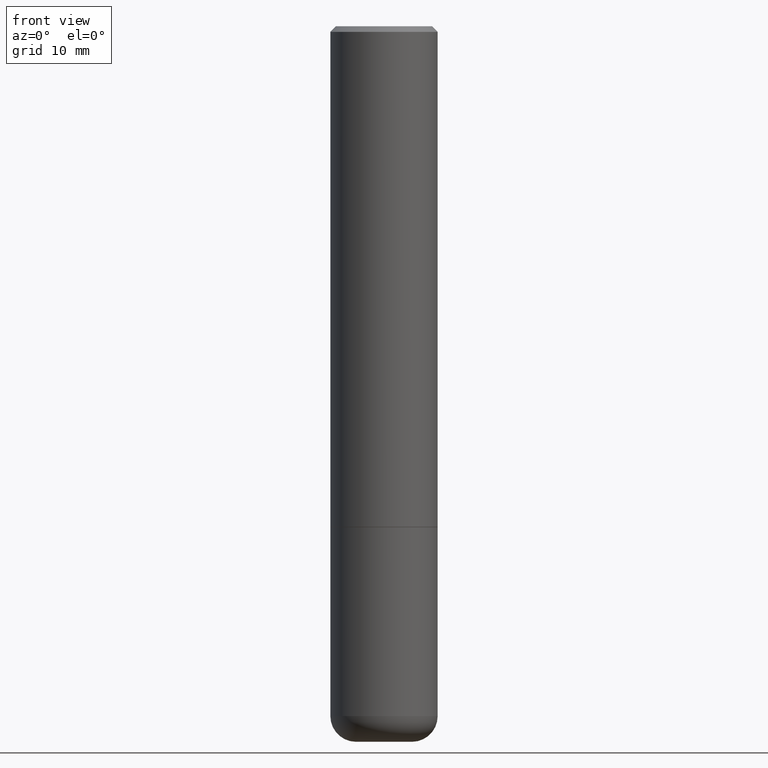
[diagram: clean part render]
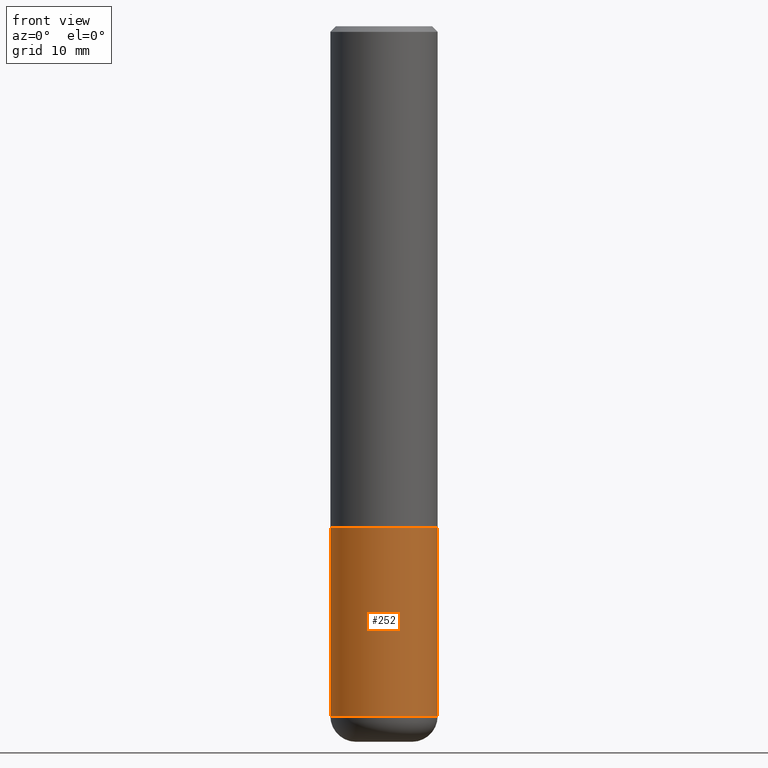
[diagram: same view with one face highlighted and labeled with its STEP entity id]
A machine part, front view. The second image highlights one B-rep face of the part: STEP entity #252.
In plain terms, the highlighted cylindrical surface (partial cylindrical patch) has radius 4.7625 mm, axis along (-0, 0, 1).
Its self-contained STEP definition (entity closure, byte-faithful):
#3 = VERTEX_POINT ( 'NONE', #364 ) ;
#42 = CARTESIAN_POINT ( 'NONE',  ( 0.000000000000000000, 0.000000000000000000, 0.000000000000000000 ) ) ;
#49 = AXIS2_PLACEMENT_3D ( 'NONE', #388, #291, #258 ) ;
#55 = CARTESIAN_POINT ( 'NONE',  ( -0.1874999999999999722, -7.082202397061793830E-15, -2.410000000000000142 ) ) ;
#66 = LINE ( 'NONE', #267, #70 ) ;
#70 = VECTOR ( 'NONE', #363, 39.37007874015748143 ) ;
#71 = CARTESIAN_POINT ( 'NONE',  ( -0.1875000000000000278, -5.930013555243555721E-15, -1.750000000000000222 ) ) ;
#75 = ORIENTED_EDGE ( 'NONE', *, *, #93, .F. ) ;
#82 = CARTESIAN_POINT ( 'NONE',  ( 4.279570410823989044E-29, -6.110092342975505460E-15, -1.750000000000000222 ) ) ;
#84 = CARTESIAN_POINT ( 'NONE',  ( -0.1875000000000000278, 1.332267629550188046E-15, -9.223003294227947991E-30 ) ) ;
#93 = EDGE_CURVE ( 'NONE', #343, #234, #99, .T. ) ;
#94 = CARTESIAN_POINT ( 'NONE',  ( 0.1875000000000000278, -7.419397845041680468E-15, -1.750000000000000222 ) ) ;
#95 = DIRECTION ( 'NONE',  ( -2.445468806185136597E-29, 3.491481338843145583E-15, 1.000000000000000000 ) ) ;
#99 = CIRCLE ( 'NONE', #109, 0.1875000000000000278 ) ;
#106 = EDGE_CURVE ( 'NONE', #161, #343, #341, .T. ) ;
#109 = AXIS2_PLACEMENT_3D ( 'NONE', #82, #116, #411 ) ;
#116 = DIRECTION ( 'NONE',  ( -2.445468806185136597E-29, 3.491481338843145583E-15, 1.000000000000000000 ) ) ;
#161 = VERTEX_POINT ( 'NONE', #55 ) ;
#183 = CIRCLE ( 'NONE', #49, 0.1875000000000000278 ) ;
#185 = AXIS2_PLACEMENT_3D ( 'NONE', #42, #95, #398 ) ;
#188 = EDGE_CURVE ( 'NONE', #161, #3, #183, .T. ) ;
#234 = VERTEX_POINT ( 'NONE', #94 ) ;
#252 = ADVANCED_FACE ( 'NONE', ( #298 ), #390, .T. ) ;
#258 = DIRECTION ( 'NONE',  ( 1.000000000000000000, -6.982962677686261189E-15, 0.000000000000000000 ) ) ;
#267 = CARTESIAN_POINT ( 'NONE',  ( 0.1875000000000000278, -1.309305502066175008E-15, 9.142831454617381013E-30 ) ) ;
#274 = EDGE_CURVE ( 'NONE', #3, #234, #66, .T. ) ;
#291 = DIRECTION ( 'NONE',  ( -2.445468806185136597E-29, 3.491481338843145583E-15, 1.000000000000000000 ) ) ;
#298 = FACE_OUTER_BOUND ( 'NONE', #381, .T. ) ;
#336 = ORIENTED_EDGE ( 'NONE', *, *, #274, .T. ) ;
#341 = LINE ( 'NONE', #84, #355 ) ;
#343 = VERTEX_POINT ( 'NONE', #71 ) ;
#352 = DIRECTION ( 'NONE',  ( -2.445468806185136877E-29, 3.491481338843145188E-15, 1.000000000000000000 ) ) ;
#355 = VECTOR ( 'NONE', #352, 39.37007874015748143 ) ;
#363 = DIRECTION ( 'NONE',  ( -2.445468806185136877E-29, 3.491481338843145188E-15, 1.000000000000000000 ) ) ;
#364 = CARTESIAN_POINT ( 'NONE',  ( 0.1874999999999999722, -9.723775528678158264E-15, -2.410000000000000142 ) ) ;
#365 = ORIENTED_EDGE ( 'NONE', *, *, #188, .T. ) ;
#368 = ORIENTED_EDGE ( 'NONE', *, *, #106, .F. ) ;
#381 = EDGE_LOOP ( 'NONE', ( #368, #365, #336, #75 ) ) ;
#388 = CARTESIAN_POINT ( 'NONE',  ( 5.893579822906179826E-29, -8.414470026611981678E-15, -2.410000000000000142 ) ) ;
#390 = CYLINDRICAL_SURFACE ( 'NONE', #185, 0.1875000000000000278 ) ;
#398 = DIRECTION ( 'NONE',  ( 1.000000000000000000, -6.982962677686265922E-15, 4.876176775795935793E-29 ) ) ;
#411 = DIRECTION ( 'NONE',  ( 1.000000000000000000, -6.982962677686266711E-15, 0.000000000000000000 ) ) ;